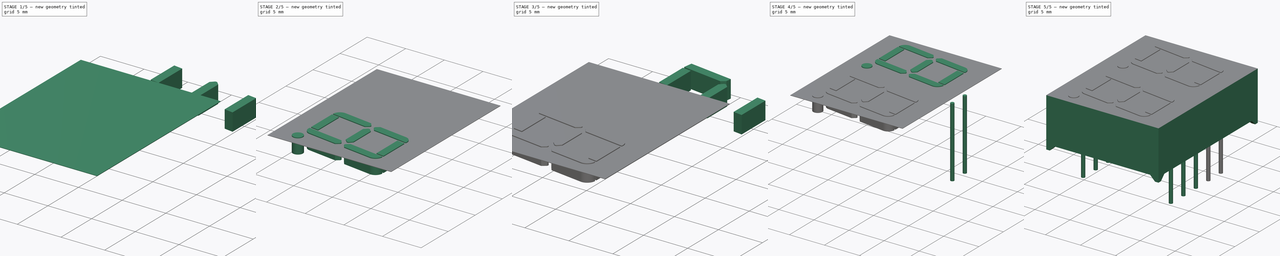
[diagram: build sequence overview — one tinted view per stage of 5, left to right]
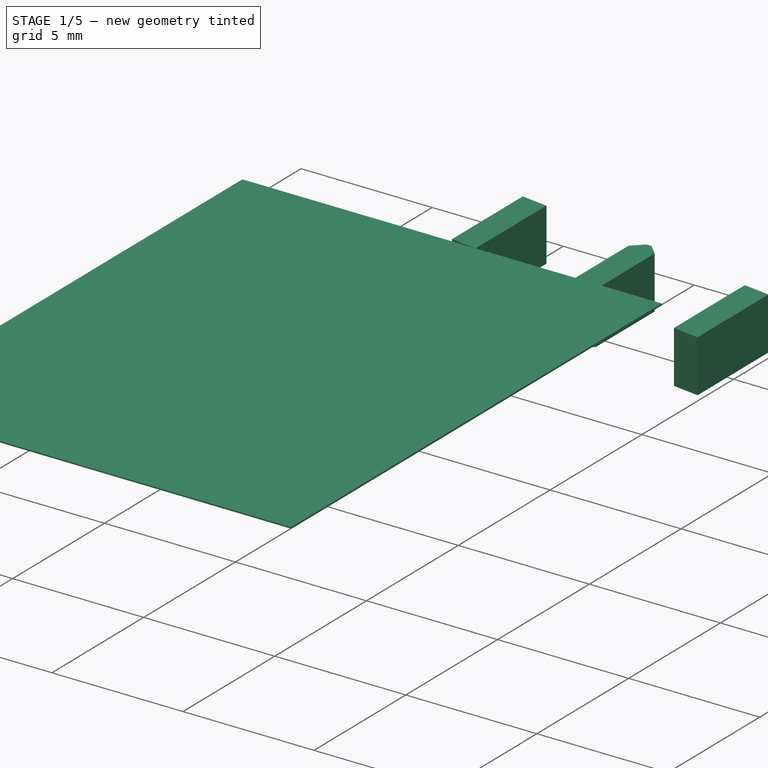
[diagram: stage 1 of 5 — iso view after this stage's code; geometry added in this stage tinted green]
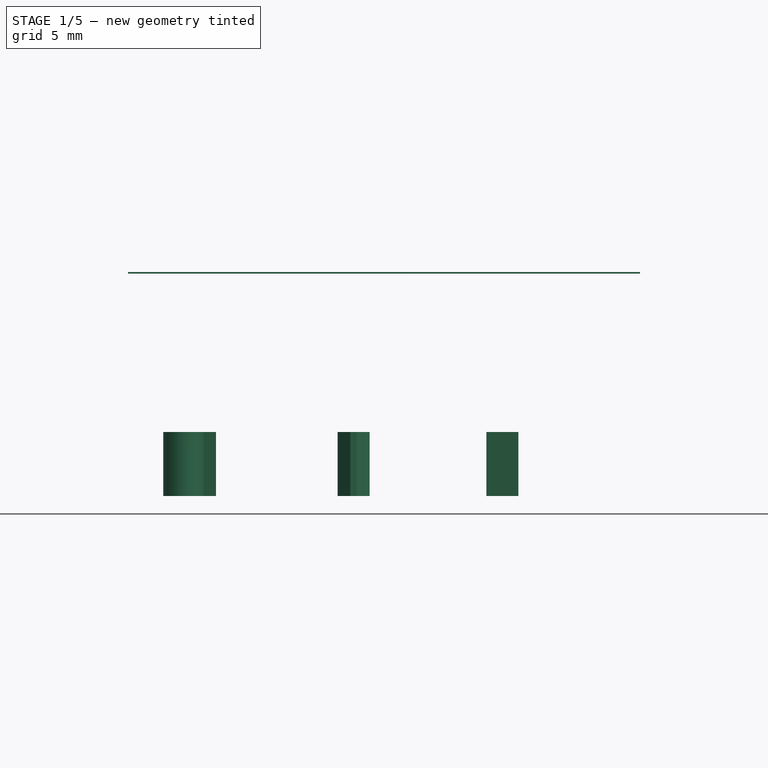
[diagram: stage 1 of 5 — front view after this stage's code; geometry added in this stage tinted green]
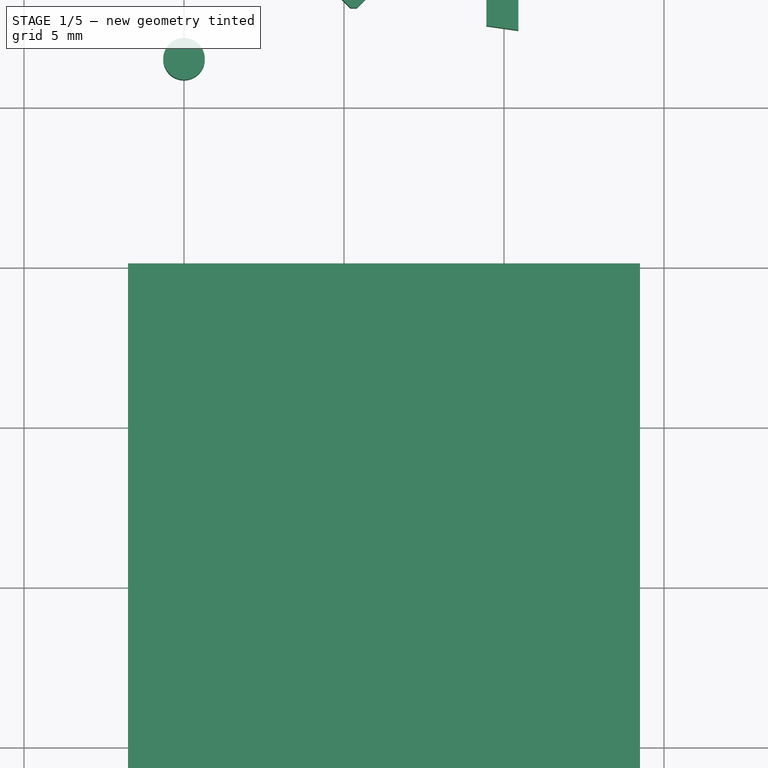
[diagram: stage 1 of 5 — top view after this stage's code; geometry added in this stage tinted green]
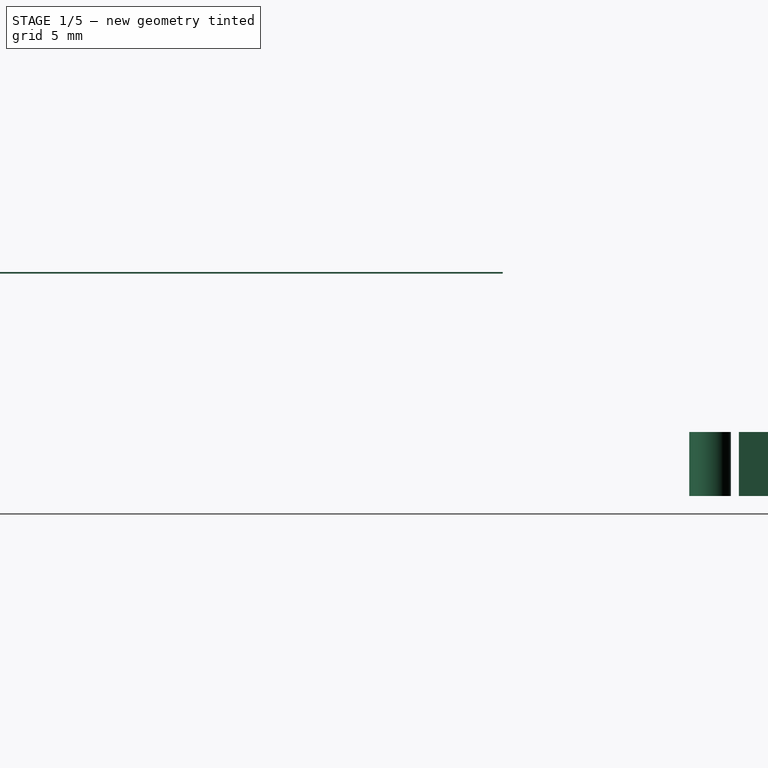
[diagram: stage 1 of 5 — right view after this stage's code; geometry added in this stage tinted green]
FCSTD DOCUMENT  (FreeCAD 0.17R11223 (Git))
Label: ELD_426XXXX_3
License: All rights reserved
LicenseURL: http://en.wikipedia.org/wiki/All_rights_reserved
objects: Part::Chamfer×28, Part::Box×25, Part::Cylinder×12, Part::Cut×10, Part::Fillet×8, App::DocumentObjectGroup×2, Part::MultiFuse×2, Sketcher::SketchObject×1, PartDesign::Pad×1, PartDesign::Body×1
note: 89 computed .brp shape members not serialized (recipe doc carries the construction recipe); baked Part::Feature solids carry a one-line shape summary decoded from their .brp

FEATURE [Part::Box] Box017  label="Kub017"
  AttacherType = Attacher::AttachEngine3D
  Height = 2
  Length = 1
  Placement = pos=(-4,14,0) rot=(0,0,1;0rad)
  Width = 4
FEATURE [Part::Box] Box018  label="Kub018"
  AttacherType = Attacher::AttachEngine3D
  Height = 2
  Length = 3
  Placement = pos=(-5,18.14,0) rot=(0,0,-1;0.139626rad)
  Width = 1
FEATURE [Part::Box] Box019  label="Kub019"
  AttacherType = Attacher::AttachEngine3D
  Height = 2
  Length = 3
  Placement = pos=(-5,13.27,0) rot=(0,0,-1;0.139626rad)
  Width = 1
FEATURE [Part::Box] Box020  label="Kub020"
  AttacherType = Attacher::AttachEngine3D
  Height = 2
  Length = 1
  Placement = pos=(-10,14,0) rot=(0,0,1;0rad)
  Width = 4
FEATURE [Part::Cut] Cut006
  Base = -> Box017
  Tool = -> Box019
FEATURE [Part::Cut] Cut007
  Base = -> Cut006
  Placement = pos=(4,-0.2,0) rot=(0,0,1;0rad)
  Tool = -> Box018
FEATURE [Part::Box] Box021  label="Kub021"
  AttacherType = Attacher::AttachEngine3D
  Height = 2
  Length = 1
  Placement = pos=(-4,14,0) rot=(0,0,1;0rad)
  Width = 4
FEATURE [Part::Box] Box022  label="Kub022"
  AttacherType = Attacher::AttachEngine3D
  Height = 2
  Length = 3
  Placement = pos=(-5,18.14,0) rot=(0,0,-1;0.139626rad)
  Width = 1
FEATURE [Part::Box] Box023  label="Kub023"
  AttacherType = Attacher::AttachEngine3D
  Height = 2
  Length = 3
  Placement = pos=(-5,13.27,0) rot=(0,0,-1;0.139626rad)
  Width = 1
FEATURE [Part::Cut] Cut008
  Base = -> Box021
  Tool = -> Box023
FEATURE [Part::Cut] Cut009
  Base = -> Cut008
  Placement = pos=(13.45,-1.6,0) rot=(0,0,1;0rad)
  Tool = -> Box022
FEATURE [Part::Chamfer] Chamfer024
  Base = -> Box020
  Edges = 1 edges r=0.4: [Edge5]
FEATURE [Part::Chamfer] Chamfer025
  Base = -> Chamfer024
  Edges = 1 edges r=0.4: [Edge3]
FEATURE [Part::Chamfer] Chamfer026
  Base = -> Chamfer025
  Edges = 1 edges r=0.4: [Edge18]
FEATURE [Part::Chamfer] Chamfer027
  Base = -> Chamfer026
  Edges = 1 edges r=0.4: [Edge15]
  Placement = pos=(14.8,-0.9,0) rot=(0,0,1;0rad)
FEATURE [Part::Cylinder] Cylinder017  label="Cylinder001"
  Angle = 360
  AttacherType = Attacher::AttachEngine3D
  Height = 2
  Placement = pos=(0,11.5,0) rot=(0,0,1;0rad)
  Radius = 0.65
FEATURE [App::DocumentObjectGroup] Grupp001  label="Digit"
  Group = -> [Fusion001,Fusion]
FEATURE [Part::Box] Box024  label="Topplate"
  AttacherType = Attacher::AttachEngine3D
  Height = 0.05
  Length = 16
  Placement = pos=(-1.75,-15.18,6.95) rot=(0,0,1;0rad)
  Width = 20.2
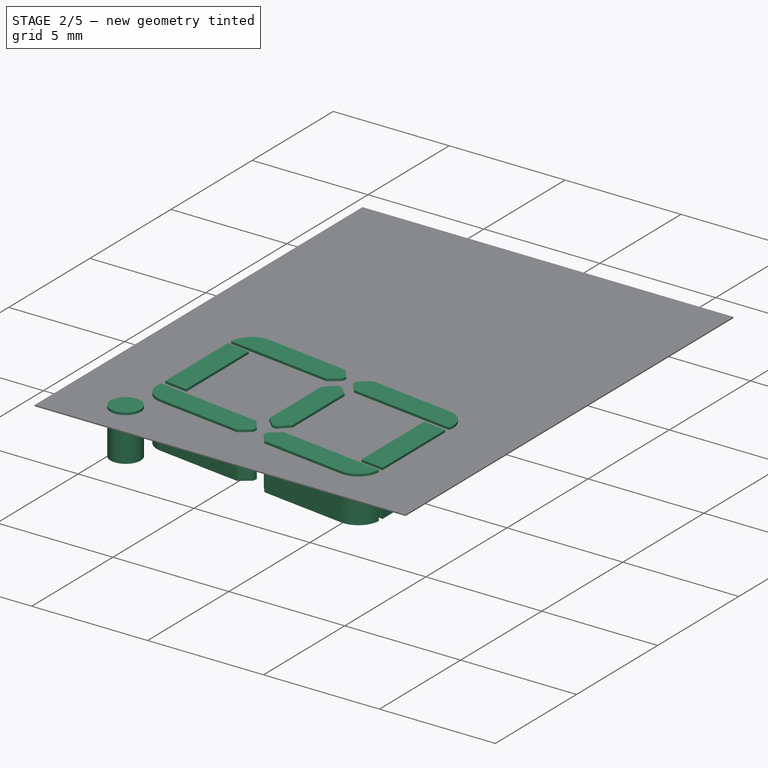
[diagram: stage 2 of 5 — iso view after this stage's code; geometry added in this stage tinted green]
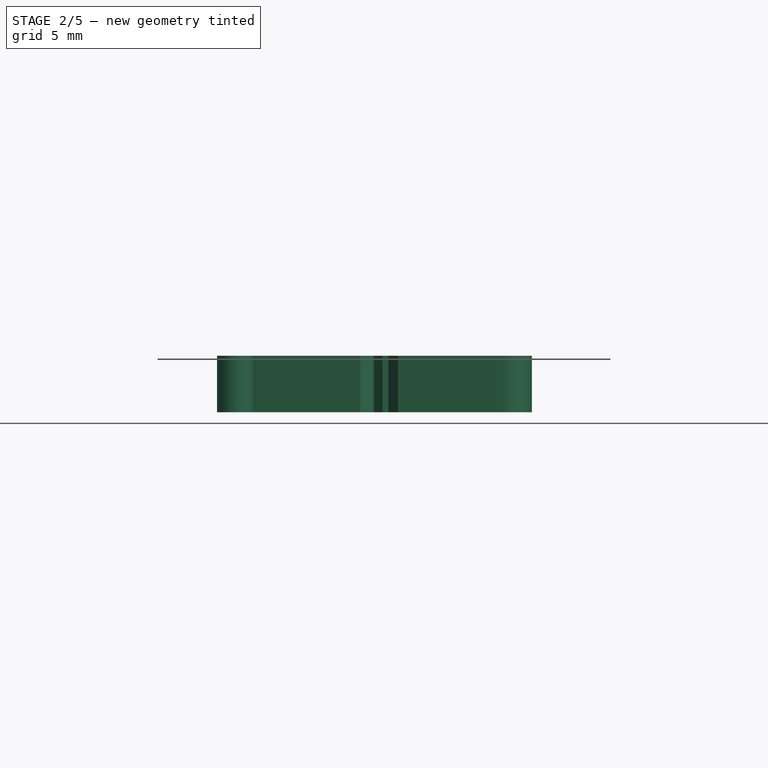
[diagram: stage 2 of 5 — front view after this stage's code; geometry added in this stage tinted green]
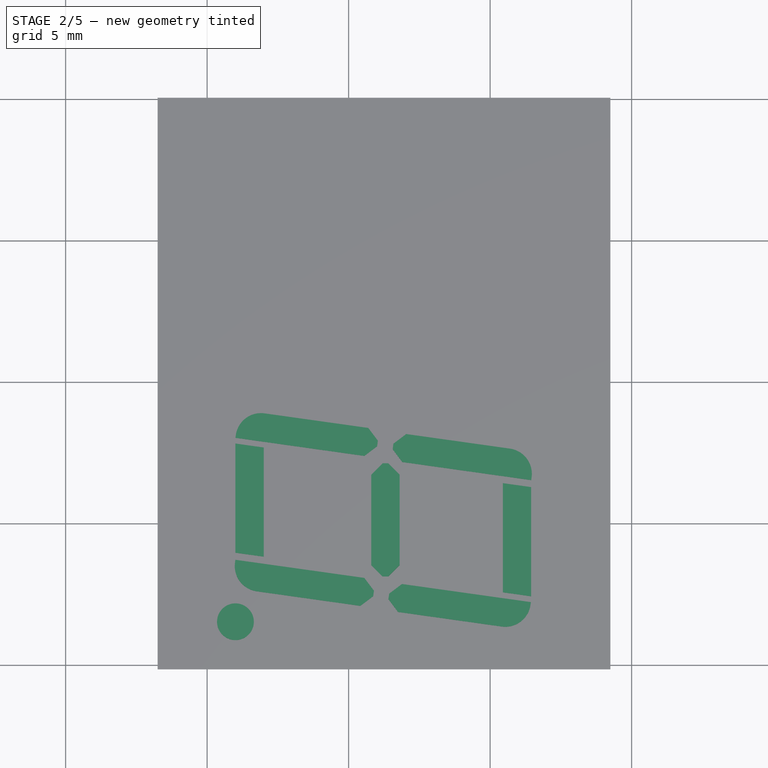
[diagram: stage 2 of 5 — top view after this stage's code; geometry added in this stage tinted green]
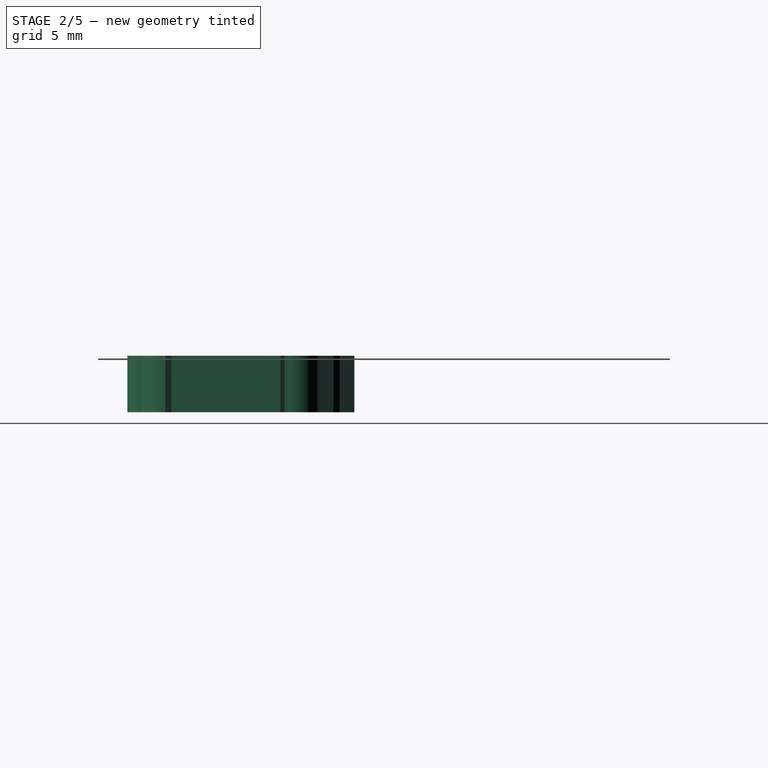
[diagram: stage 2 of 5 — right view after this stage's code; geometry added in this stage tinted green]
FEATURE [Part::Box] Box013  label="Kub013"
  AttacherType = Attacher::AttachEngine3D
  Height = 2
  Length = 5
  Placement = pos=(0,18,0) rot=(0,0,-1;0.139626rad)
  Width = 1
FEATURE [Part::Box] Box014  label="Kub014"
  AttacherType = Attacher::AttachEngine3D
  Height = 2
  Length = 5
  Placement = pos=(0,13,0) rot=(0,0,-1;0.139626rad)
  Width = 1
FEATURE [Part::Box] Box015  label="Kub015"
  AttacherType = Attacher::AttachEngine3D
  Height = 2
  Length = 5
  Placement = pos=(9,18,0) rot=(0,0,-1;0.139626rad)
  Width = 1
FEATURE [Part::Box] Box016  label="Kub016"
  AttacherType = Attacher::AttachEngine3D
  Height = 2
  Length = 5
  Placement = pos=(9,13,0) rot=(0,0,-1;0.139626rad)
  Width = 1
FEATURE [Part::Chamfer] Chamfer016
  Base = -> Box015
  Edges = 1 edges r=0.4: [Edge1]
FEATURE [Part::Chamfer] Chamfer017
  Base = -> Chamfer016
  Edges = 1 edges r=0.4: [Edge3]
FEATURE [Part::Chamfer] Chamfer018
  Base = -> Box016
  Edges = 1 edges r=0.4: [Edge3]
FEATURE [Part::Chamfer] Chamfer019
  Base = -> Chamfer018
  Edges = 1 edges r=0.4: [Edge3]
FEATURE [Part::Chamfer] Chamfer020
  Base = -> Box014
  Edges = 1 edges r=0.4: [Edge5]
FEATURE [Part::Chamfer] Chamfer021
  Base = -> Chamfer020
  Edges = 1 edges r=0.4: [Edge3]
FEATURE [Part::Chamfer] Chamfer022
  Base = -> Box013
  Edges = 1 edges r=0.4: [Edge5]
FEATURE [Part::Chamfer] Chamfer023
  Base = -> Chamfer022
  Edges = 1 edges r=0.4: [Edge3]
FEATURE [Part::Fillet] Fillet004
  Base = -> Chamfer017
  Edges = 1 edges r=0.9: [Edge17]
  Placement = pos=(-3.5,-0.8,0) rot=(0,0,1;0rad)
FEATURE [Part::Fillet] Fillet005
  Base = -> Chamfer019
  Edges = 1 edges r=0.9: [Edge17]
  Placement = pos=(-3.65,-1.1,0) rot=(0,0,1;0rad)
FEATURE [Part::Fillet] Fillet006
  Base = -> Chamfer021
  Edges = 1 edges r=0.9: [Edge18]
  Placement = pos=(-0.14,-0.3,0) rot=(0,0,1;0rad)
FEATURE [Part::Fillet] Fillet007
  Base = -> Chamfer023
  Edges = 1 edges r=0.9: [Edge17]
FEATURE [Part::MultiFuse] Fusion001  label="Digit002"
  Placement = pos=(1,-25,5.1) rot=(0,0,1;0rad)
  Shapes = -> [Fillet004,Fillet005,Fillet006,Fillet007,Cut009,Cut007,Chamfer027,Cylinder017]
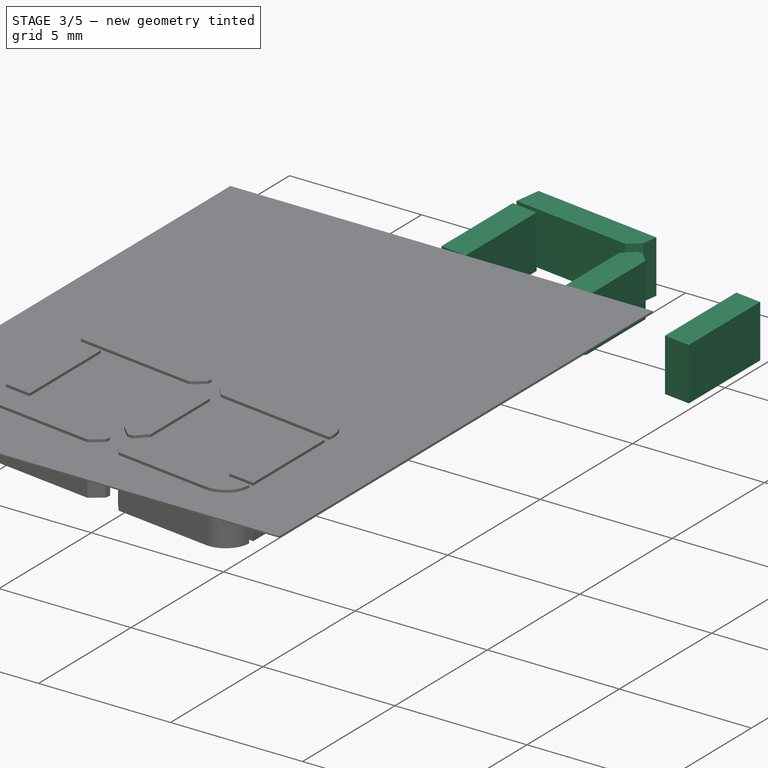
[diagram: stage 3 of 5 — iso view after this stage's code; geometry added in this stage tinted green]
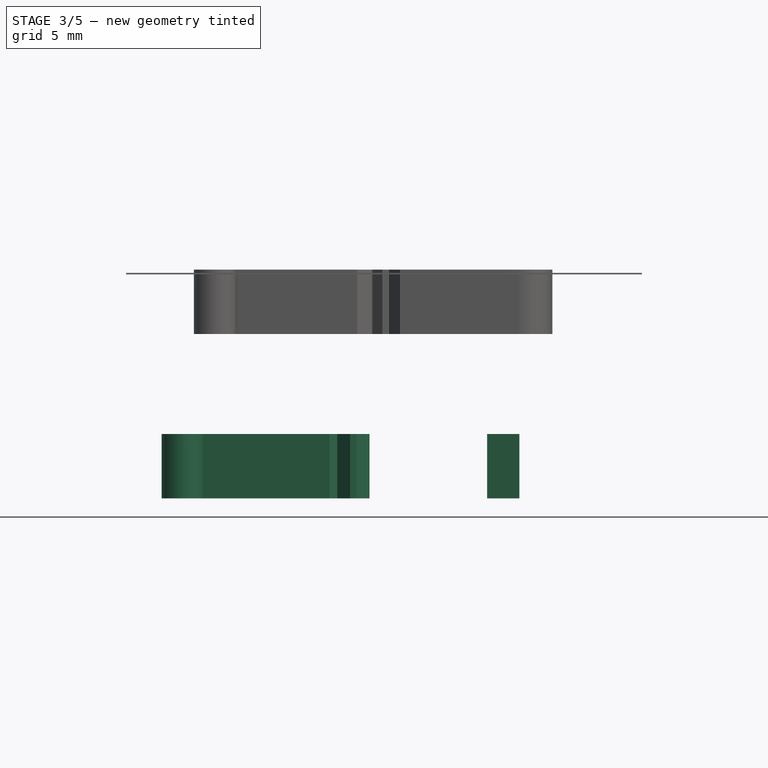
[diagram: stage 3 of 5 — front view after this stage's code; geometry added in this stage tinted green]
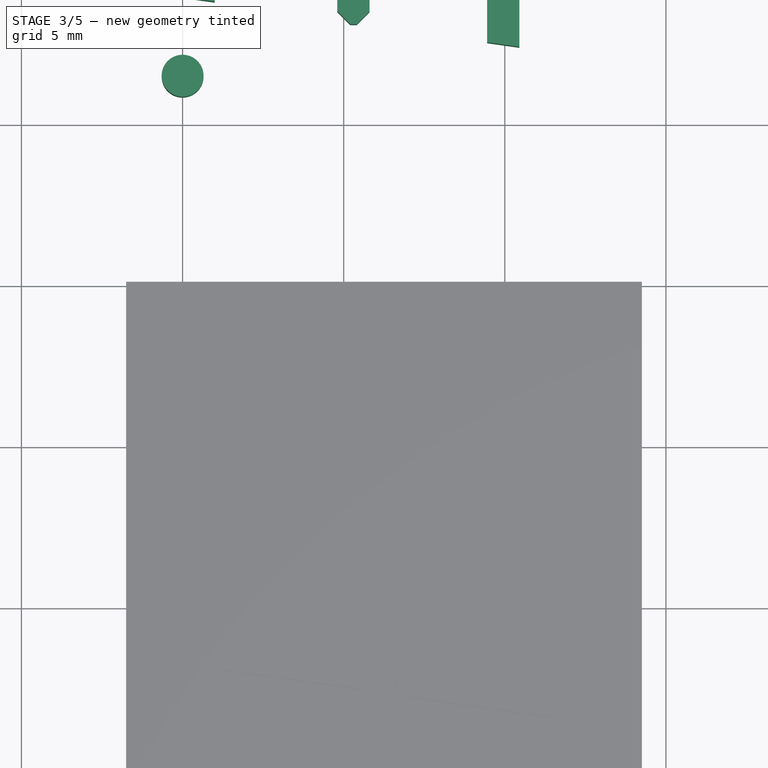
[diagram: stage 3 of 5 — top view after this stage's code; geometry added in this stage tinted green]
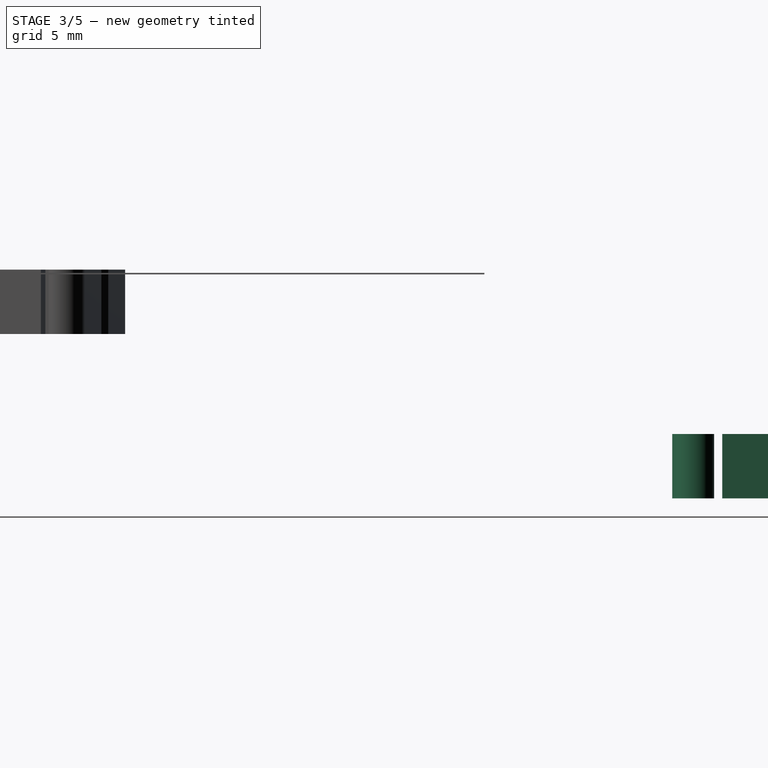
[diagram: stage 3 of 5 — right view after this stage's code; geometry added in this stage tinted green]
FEATURE [App::DocumentObjectGroup] Grupp  label="Pins"
  Group = -> [Cylinder,Cylinder001,Cylinder002,Cylinder003,Cylinder004,Cylinder005,Cylinder006,Cylinder007,Cylinder008,Cylinder009]
FEATURE [Part::Box] Box002  label="Kub002"
  AttacherType = Attacher::AttachEngine3D
  Height = 2
  Length = 5
  Placement = pos=(0,18,0) rot=(0,0,-1;0.139626rad)
  Width = 1
FEATURE [Part::Chamfer] Chamfer010
  Base = -> Box002
  Edges = 1 edges r=0.4: [Edge5]
FEATURE [Part::Box] Box006  label="Kub006"
  AttacherType = Attacher::AttachEngine3D
  Height = 2
  Length = 1
  Placement = pos=(-4,14,0) rot=(0,0,1;0rad)
  Width = 4
FEATURE [Part::Box] Box007  label="Kub007"
  AttacherType = Attacher::AttachEngine3D
  Height = 2
  Length = 3
  Placement = pos=(-5,18.14,0) rot=(0,0,-1;0.139626rad)
  Width = 1
FEATURE [Part::Box] Box008  label="Kub008"
  AttacherType = Attacher::AttachEngine3D
  Height = 2
  Length = 3
  Placement = pos=(-5,13.27,0) rot=(0,0,-1;0.139626rad)
  Width = 1
FEATURE [Part::Box] Box009  label="Kub009"
  AttacherType = Attacher::AttachEngine3D
  Height = 2
  Length = 1
  Placement = pos=(-10,14,0) rot=(0,0,1;0rad)
  Width = 4
FEATURE [Part::Cut] Cut002
  Base = -> Box006
  Tool = -> Box008
FEATURE [Part::Cut] Cut003
  Base = -> Cut002
  Placement = pos=(4,-0.2,0) rot=(0,0,1;0rad)
  Tool = -> Box007
FEATURE [Part::Box] Box010  label="Kub010"
  AttacherType = Attacher::AttachEngine3D
  Height = 2
  Length = 1
  Placement = pos=(-4,14,0) rot=(0,0,1;0rad)
  Width = 4
FEATURE [Part::Box] Box011  label="Kub011"
  AttacherType = Attacher::AttachEngine3D
  Height = 2
  Length = 3
  Placement = pos=(-5,18.14,0) rot=(0,0,-1;0.139626rad)
  Width = 1
FEATURE [Part::Box] Box012  label="Kub012"
  AttacherType = Attacher::AttachEngine3D
  Height = 2
  Length = 3
  Placement = pos=(-5,13.27,0) rot=(0,0,-1;0.139626rad)
  Width = 1
FEATURE [Part::Cut] Cut004
  Base = -> Box010
  Tool = -> Box012
FEATURE [Part::Cut] Cut005
  Base = -> Cut004
  Placement = pos=(13.45,-1.6,0) rot=(0,0,1;0rad)
  Tool = -> Box011
FEATURE [Part::Chamfer] Chamfer012
  Base = -> Box009
  Edges = 1 edges r=0.4: [Edge5]
FEATURE [Part::Chamfer] Chamfer013
  Base = -> Chamfer012
  Edges = 1 edges r=0.4: [Edge3]
FEATURE [Part::Chamfer] Chamfer014
  Base = -> Chamfer013
  Edges = 1 edges r=0.4: [Edge18]
FEATURE [Part::Chamfer] Chamfer015
  Base = -> Chamfer014
  Edges = 1 edges r=0.4: [Edge15]
  Placement = pos=(14.8,-0.9,0) rot=(0,0,1;0rad)
FEATURE [Part::Cylinder] Cylinder016  label="Cylinder"
  Angle = 360
  AttacherType = Attacher::AttachEngine3D
  Height = 2
  Placement = pos=(0,11.5,0) rot=(0,0,1;0rad)
  Radius = 0.65
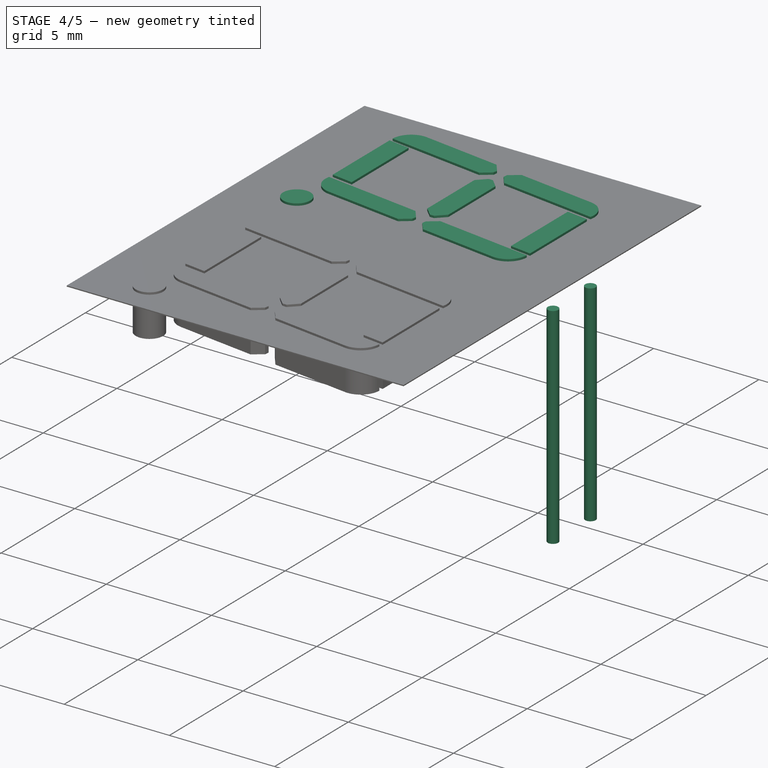
[diagram: stage 4 of 5 — iso view after this stage's code; geometry added in this stage tinted green]
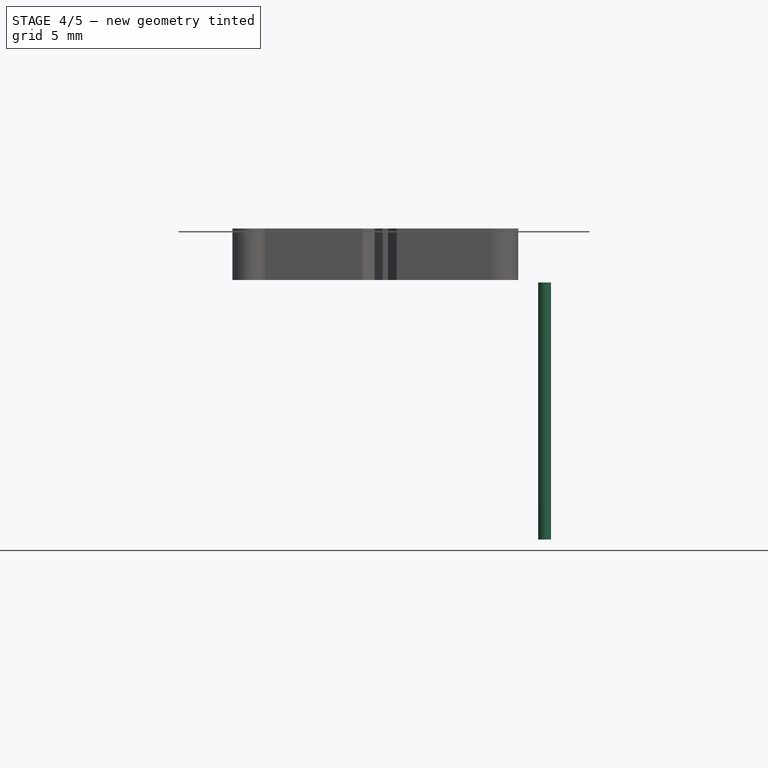
[diagram: stage 4 of 5 — front view after this stage's code; geometry added in this stage tinted green]
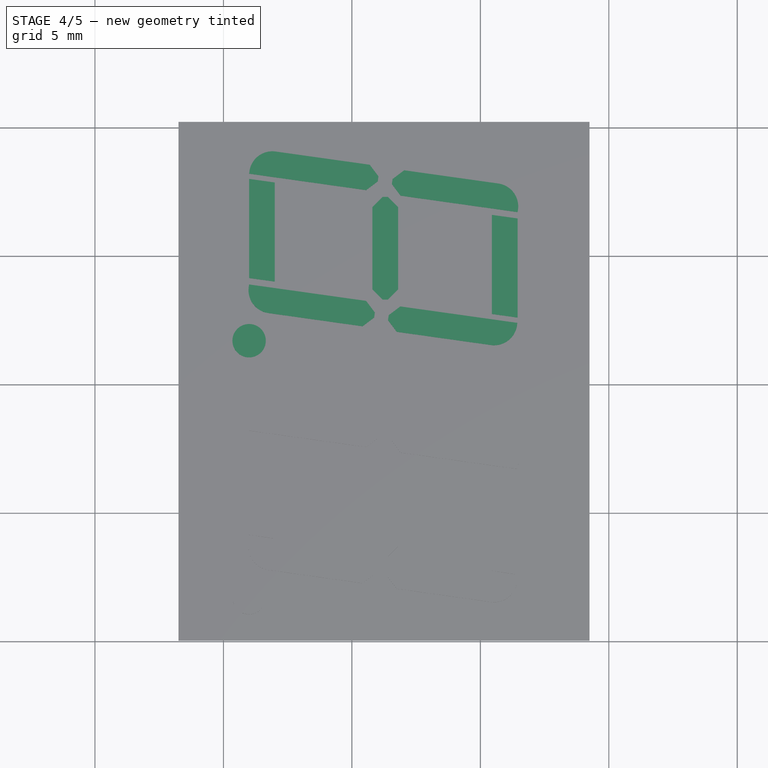
[diagram: stage 4 of 5 — top view after this stage's code; geometry added in this stage tinted green]
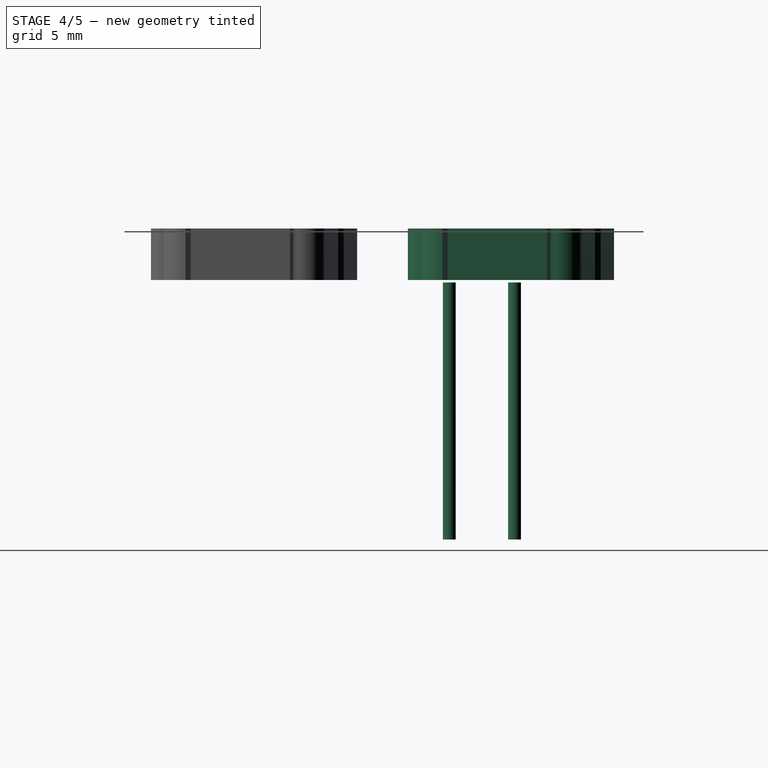
[diagram: stage 4 of 5 — right view after this stage's code; geometry added in this stage tinted green]
FEATURE [Part::Cylinder] Cylinder008  label="Pin009"
  Angle = 360
  AttacherType = Attacher::AttachEngine3D
  Height = 10
  Placement = pos=(12.5,-2.54,-5) rot=(0,0,1;0rad)
  Radius = 0.2505
FEATURE [Part::Cylinder] Cylinder009  label="Pin010"
  Angle = 360
  AttacherType = Attacher::AttachEngine3D
  Height = 10
  Placement = pos=(12.5,0,-5) rot=(0,0,1;0rad)
  Radius = 0.2505
FEATURE [Part::Box] Box003  label="Kub003"
  AttacherType = Attacher::AttachEngine3D
  Height = 2
  Length = 5
  Placement = pos=(0,13,0) rot=(0,0,-1;0.139626rad)
  Width = 1
FEATURE [Part::Box] Box004  label="Kub004"
  AttacherType = Attacher::AttachEngine3D
  Height = 2
  Length = 5
  Placement = pos=(9,18,0) rot=(0,0,-1;0.139626rad)
  Width = 1
FEATURE [Part::Box] Box005  label="Kub005"
  AttacherType = Attacher::AttachEngine3D
  Height = 2
  Length = 5
  Placement = pos=(9,13,0) rot=(0,0,-1;0.139626rad)
  Width = 1
FEATURE [Part::Chamfer] Chamfer004
  Base = -> Box004
  Edges = 1 edges r=0.4: [Edge1]
FEATURE [Part::Chamfer] Chamfer005
  Base = -> Chamfer004
  Edges = 1 edges r=0.4: [Edge3]
FEATURE [Part::Chamfer] Chamfer006
  Base = -> Box005
  Edges = 1 edges r=0.4: [Edge3]
FEATURE [Part::Chamfer] Chamfer007
  Base = -> Chamfer006
  Edges = 1 edges r=0.4: [Edge3]
FEATURE [Part::Chamfer] Chamfer008
  Base = -> Box003
  Edges = 1 edges r=0.4: [Edge5]
FEATURE [Part::Chamfer] Chamfer009
  Base = -> Chamfer008
  Edges = 1 edges r=0.4: [Edge3]
FEATURE [Part::Chamfer] Chamfer011
  Base = -> Chamfer010
  Edges = 1 edges r=0.4: [Edge3]
FEATURE [Part::Fillet] Fillet
  Base = -> Chamfer005
  Edges = 1 edges r=0.9: [Edge17]
  Placement = pos=(-3.5,-0.8,0) rot=(0,0,1;0rad)
FEATURE [Part::Fillet] Fillet001
  Base = -> Chamfer007
  Edges = 1 edges r=0.9: [Edge17]
  Placement = pos=(-3.65,-1.1,0) rot=(0,0,1;0rad)
FEATURE [Part::Fillet] Fillet002
  Base = -> Chamfer009
  Edges = 1 edges r=0.9: [Edge18]
  Placement = pos=(-0.14,-0.3,0) rot=(0,0,1;0rad)
FEATURE [Part::Fillet] Fillet003
  Base = -> Chamfer011
  Edges = 1 edges r=0.9: [Edge17]
FEATURE [Part::MultiFuse] Fusion  label="Digit001"
  Placement = pos=(1,-15,5.1) rot=(0,0,1;0rad)
  Shapes = -> [Fillet,Fillet001,Fillet002,Fillet003,Cut005,Cut003,Chamfer015,Cylinder016]
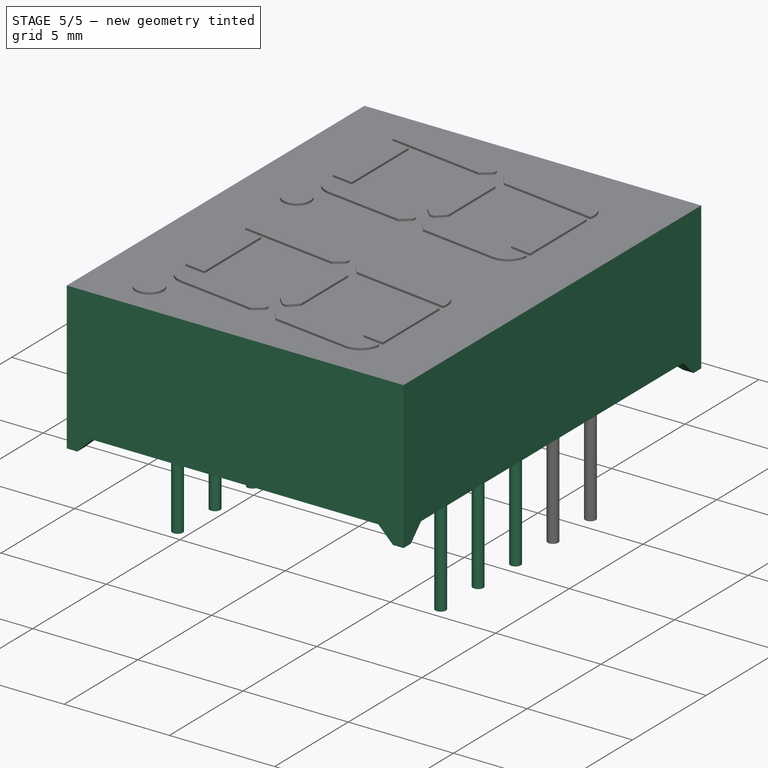
[diagram: stage 5 of 5 — iso view after this stage's code; geometry added in this stage tinted green]
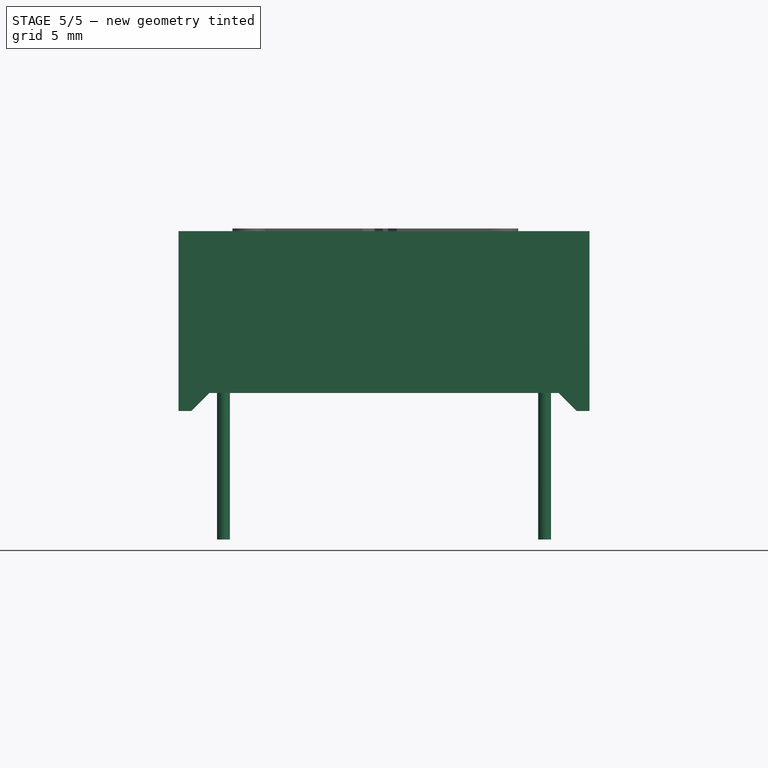
[diagram: stage 5 of 5 — front view after this stage's code; geometry added in this stage tinted green]
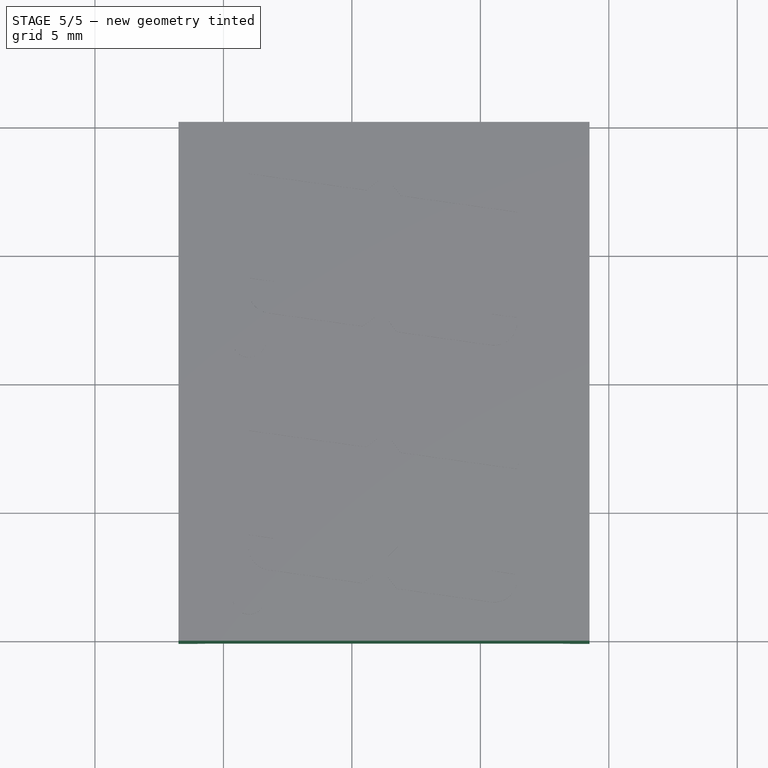
[diagram: stage 5 of 5 — top view after this stage's code; geometry added in this stage tinted green]
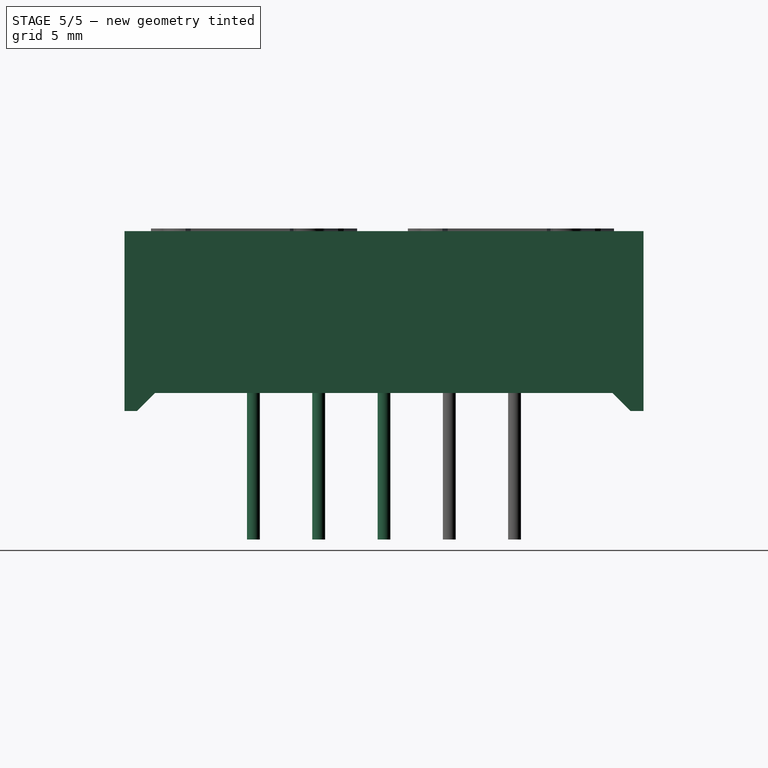
[diagram: stage 5 of 5 — right view after this stage's code; geometry added in this stage tinted green]
FEATURE [Sketcher::SketchObject] Sketch
  MapMode = 5
  Support = -> [XY_Plane]
  sketch-geometry (4):
    g0: LineSegment StartX=-1.75 StartY=5.02 StartZ=0 EndX=14.25 EndY=5.02 EndZ=0
    g1: LineSegment StartX=14.25 StartY=5.02 StartZ=0 EndX=14.25 EndY=-15.18 EndZ=0
    g2: LineSegment StartX=14.25 StartY=-15.18 StartZ=0 EndX=-1.75 EndY=-15.18 EndZ=0
    g3: LineSegment StartX=-1.75 StartY=-15.18 StartZ=0 EndX=-1.75 EndY=5.02 EndZ=0
  constraints (12):
    c: Coincident(g0,g1)
    c: Coincident(g1,g2)
    c: Coincident(g2,g3)
    c: Coincident(g3,g0)
    c: Horizontal(g0)
    c: Horizontal(g2)
    c: Vertical(g1)
    c: Vertical(g3)
    c: DistanceY(g1,g0) = 20.2
    c: DistanceX(g2,g1) = 16
    c: DistanceY(g-1,g0) = 5.02
    c: DistanceX(g0,g-1) = 1.75
FEATURE [PartDesign::Pad] Pad
  Length = 7
  Length2 = 100
  Profile = -> Sketch
  Type = 0
FEATURE [PartDesign::Body] Body
  Group = -> [Sketch,Pad]
  Origin = -> BodyOrigin
  Tip = -> Pad
FEATURE [Part::Box] Box  label="Kub"
  AttacherType = Attacher::AttachEngine3D
  Height = 2
  Length = 15
  Placement = pos=(-1.25,-18,-1) rot=(0,0,1;0rad)
  Width = 25
FEATURE [Part::Chamfer] Chamfer
  Base = -> Box
  Edges = 1 edges r=0.7: [Edge2]
FEATURE [Part::Chamfer] Chamfer001
  Base = -> Chamfer
  Edges = 1 edges r=0.7: [Edge15]
  Placement = pos=(0,0,-0.3) rot=(0,0,1;0rad)
FEATURE [Part::Box] Box001  label="Kub001"
  AttacherType = Attacher::AttachEngine3D
  Height = 2
  Length = 21
  Placement = pos=(-4,-14.69,-1.3) rot=(0,0,1;0rad)
  Width = 19.2
FEATURE [Part::Chamfer] Chamfer002
  Base = -> Box001
  Edges = 1 edges r=0.7: [Edge12]
FEATURE [Part::Chamfer] Chamfer003
  Base = -> Chamfer002
  Edges = 1 edges r=0.7: [Edge7]
FEATURE [Part::Cut] Cut
  Base = -> Body
  Tool = -> Chamfer001
FEATURE [Part::Cut] Cut001
  Base = -> Cut
  Tool = -> Chamfer003
FEATURE [Part::Cylinder] Cylinder  label="Pin001"
  Angle = 360
  AttacherType = Attacher::AttachEngine3D
  Height = 10
  Placement = pos=(0,0,-5) rot=(0,0,1;0rad)
  Radius = 0.2505
FEATURE [Part::Cylinder] Cylinder001  label="Pin002"
  Angle = 360
  AttacherType = Attacher::AttachEngine3D
  Height = 10
  Placement = pos=(0,-2.54,-5) rot=(0,0,1;0rad)
  Radius = 0.2505
FEATURE [Part::Cylinder] Cylinder002  label="Pin003"
  Angle = 360
  AttacherType = Attacher::AttachEngine3D
  Height = 10
  Placement = pos=(0,-5.08,-5) rot=(0,0,1;0rad)
  Radius = 0.2505
FEATURE [Part::Cylinder] Cylinder003  label="Pin004"
  Angle = 360
  AttacherType = Attacher::AttachEngine3D
  Height = 10
  Placement = pos=(0,-7.62,-5) rot=(0,0,1;0rad)
  Radius = 0.2505
FEATURE [Part::Cylinder] Cylinder004  label="Pin005"
  Angle = 360
  AttacherType = Attacher::AttachEngine3D
  Height = 10
  Placement = pos=(0,-10.16,-5) rot=(0,0,1;0rad)
  Radius = 0.2505
FEATURE [Part::Cylinder] Cylinder005  label="Pin006"
  Angle = 360
  AttacherType = Attacher::AttachEngine3D
  Height = 10
  Placement = pos=(12.5,-10.16,-5) rot=(0,0,1;0rad)
  Radius = 0.2505
FEATURE [Part::Cylinder] Cylinder006  label="Pin007"
  Angle = 360
  AttacherType = Attacher::AttachEngine3D
  Height = 10
  Placement = pos=(12.5,-7.62,-5) rot=(0,0,1;0rad)
  Radius = 0.2505
FEATURE [Part::Cylinder] Cylinder007  label="Pin008"
  Angle = 360
  AttacherType = Attacher::AttachEngine3D
  Height = 10
  Placement = pos=(12.5,-5.08,-5) rot=(0,0,1;0rad)
  Radius = 0.2505
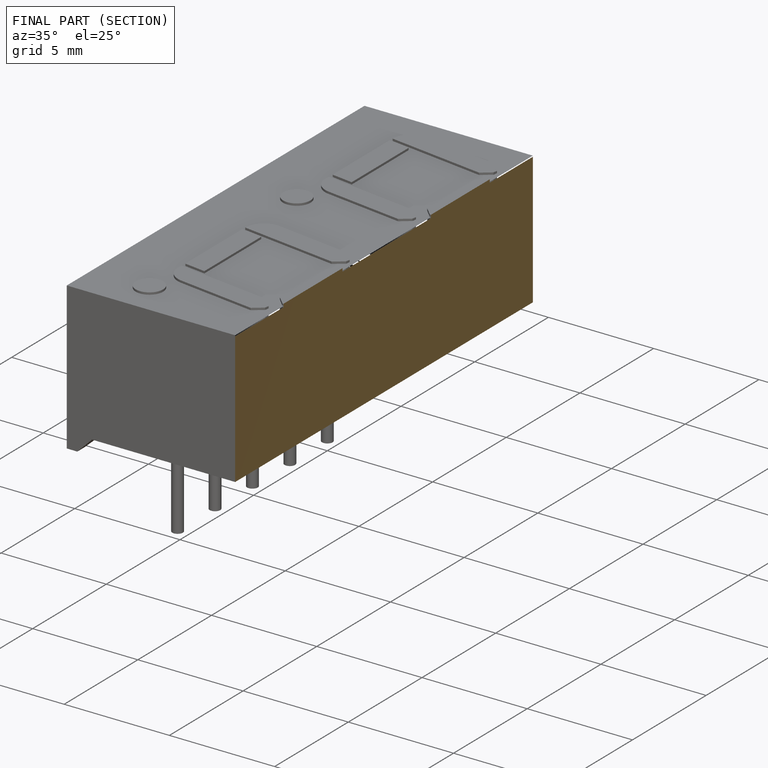
[diagram: finished part — half-section view (interior)]
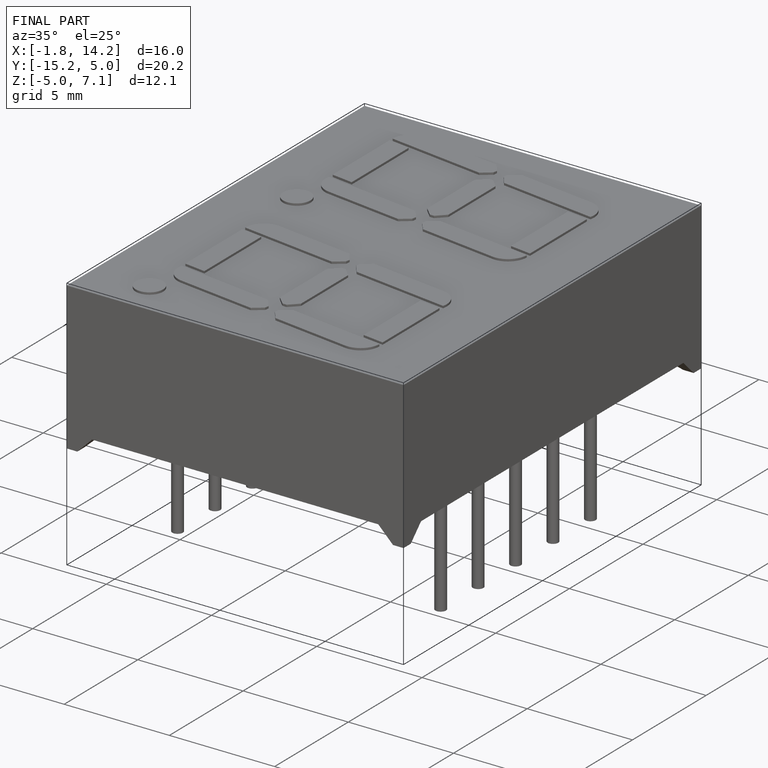
[diagram: finished part — iso view with bounding-box wireframe]
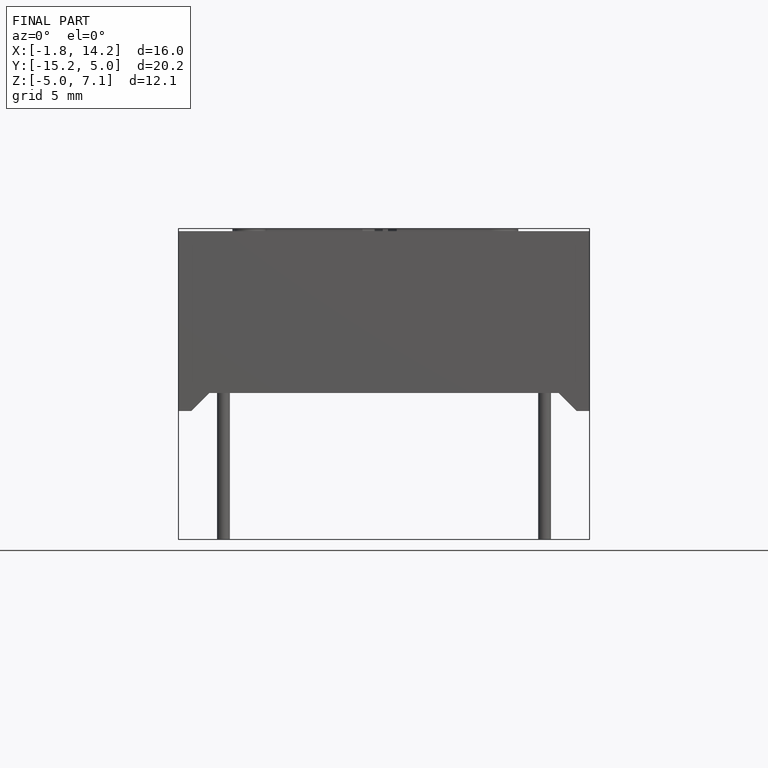
[diagram: finished part — front view with bounding-box wireframe]
